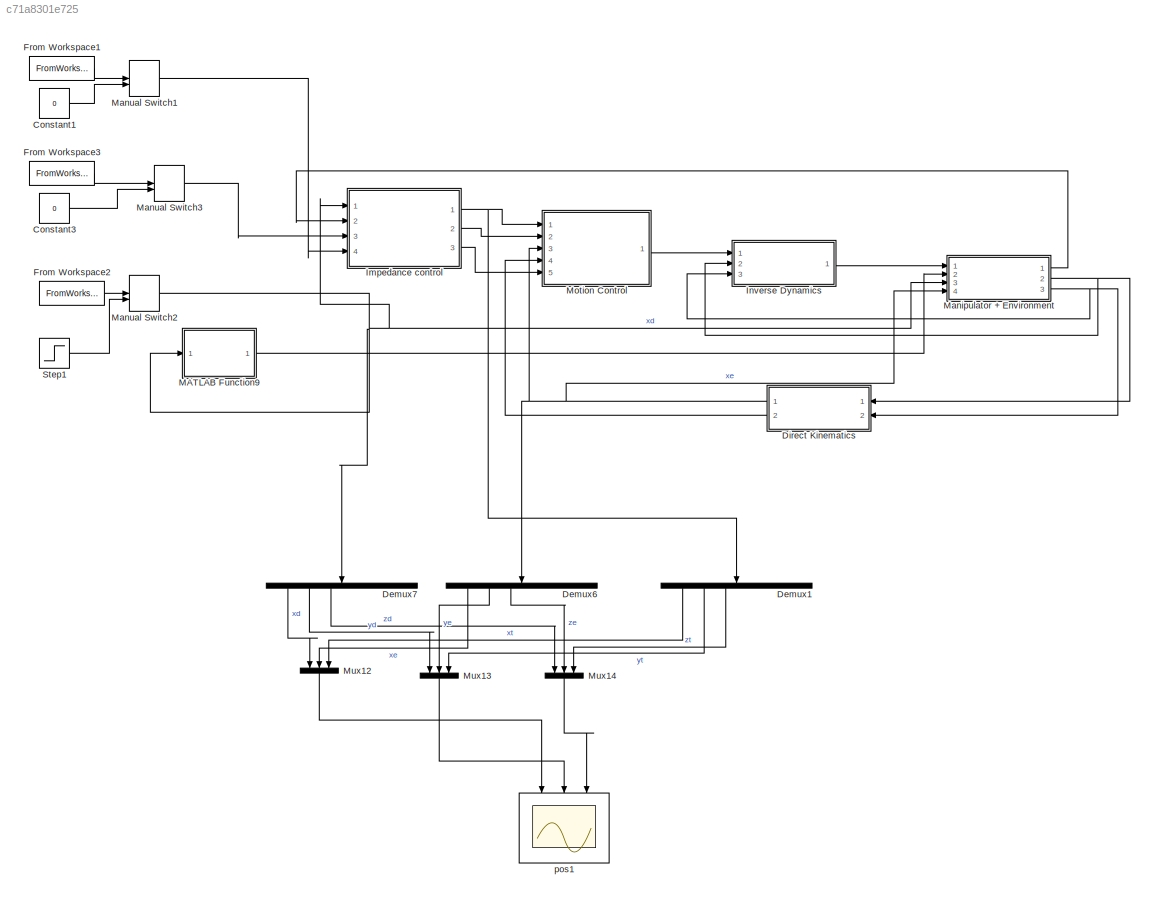
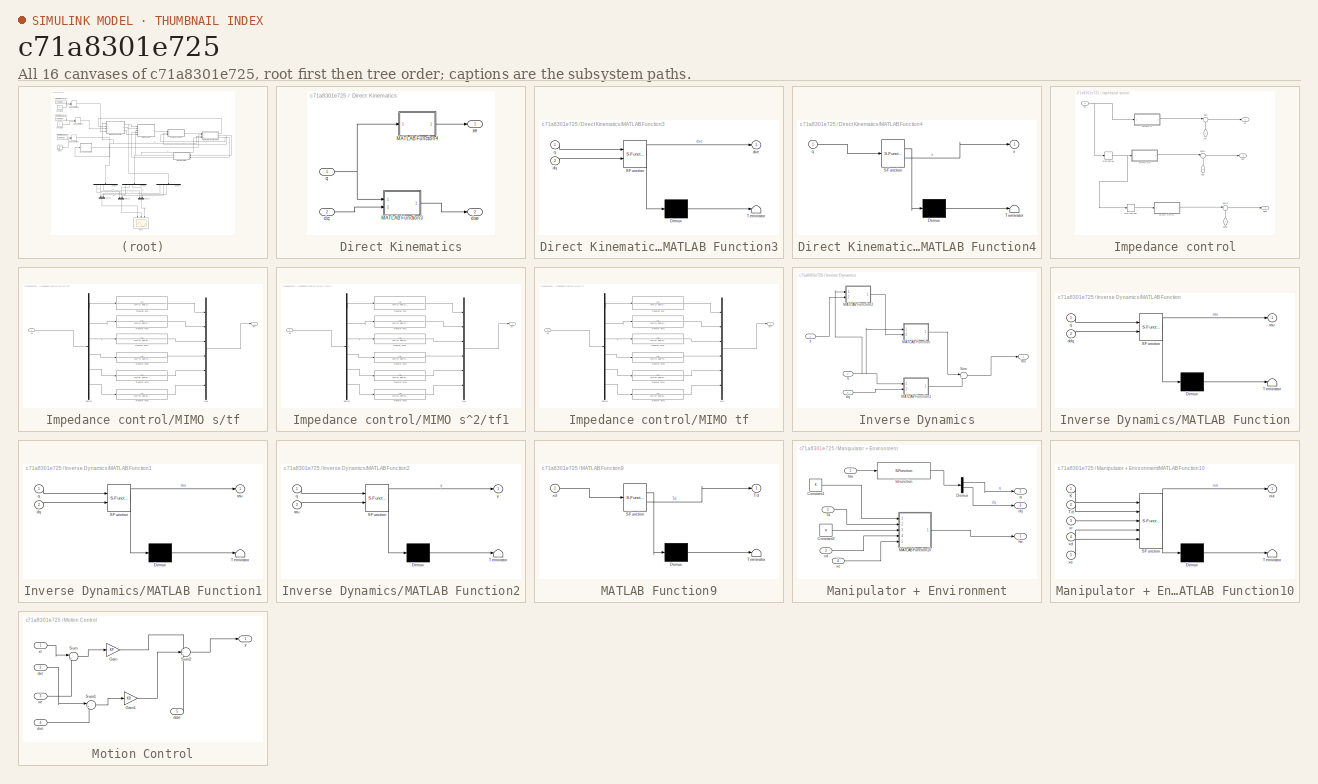
[diagram: thumbnail index - all 16 canvases of the model, root first then tree order]
MODEL slx_c71a8301e725
KIND model
CONFIG AbsTol = auto
CONFIG EnableMultiTasking = off
CONFIG FixedStep = Ts
CONFIG MaxStep = auto
CONFIG MinStep = auto
CONFIG RelTol = 1e-3
CONFIG SampleTimeConstraint = Unconstrained
CONFIG SolverName = FixedStepAuto
CONFIG StartTime = 0.0
CONFIG StopTime = 10
BLOCK [Constant] Constant1
  Value = 0
BLOCK [Constant] Constant3
  Value = 0
BLOCK [Demux] Demux1
  NameLocation = left
  Outputs = 6
  Ports = [1, 6]
BLOCK [Demux] Demux6
  NameLocation = left
  Outputs = 6
  Ports = [1, 6]
BLOCK [Demux] Demux7
  NameLocation = left
  Outputs = 6
  Ports = [1, 6]
BLOCK [SubSystem] Direct Kinematics
  Ports = [2, 2]
  RequestExecContextInheritance = off
BLOCK [SubSystem] Direct Kinematics/MATLAB Function3
  ErrorFcn = Stateflow.Translate.translate
  PermitHierarchicalResolution = ExplicitOnly
  Ports = [2, 1]
  RequestExecContextInheritance = off
  SFBlockType = MATLAB Function
  TreatAsAtomicUnit = on
BLOCK [Demux] Direct Kinematics/MATLAB Function3/ Demux 
  Outputs = 1
  Ports = [1, 1]
BLOCK [S-Function] Direct Kinematics/MATLAB Function3/ SFunction 
  EnableBusSupport = on
  FunctionName = sf_sfun
  PortCounts = [2 2]
  Ports = [2, 2]
  SFcnIsStateOwnerBlock = off
  SFunctionDeploymentMode = off
  Tag = Stateflow S-Function 10
BLOCK [Terminator] Direct Kinematics/MATLAB Function3/ Terminator 
BLOCK [Inport] Direct Kinematics/MATLAB Function3/dq
  Port = 2
BLOCK [Outport] Direct Kinematics/MATLAB Function3/dxe
BLOCK [Inport] Direct Kinematics/MATLAB Function3/q
BLOCK [SubSystem] Direct Kinematics/MATLAB Function4
  ErrorFcn = Stateflow.Translate.translate
  PermitHierarchicalResolution = ExplicitOnly
  Ports = [1, 1]
  RequestExecContextInheritance = off
  SFBlockType = MATLAB Function
  TreatAsAtomicUnit = on
BLOCK [Demux] Direct Kinematics/MATLAB Function4/ Demux 
  Outputs = 1
  Ports = [1, 1]
BLOCK [S-Function] Direct Kinematics/MATLAB Function4/ SFunction 
  EnableBusSupport = on
  FunctionName = sf_sfun
  PortCounts = [1 2]
  Ports = [1, 2]
  SFcnIsStateOwnerBlock = off
  SFunctionDeploymentMode = off
  Tag = Stateflow S-Function 13
BLOCK [Terminator] Direct Kinematics/MATLAB Function4/ Terminator 
BLOCK [Inport] Direct Kinematics/MATLAB Function4/q
BLOCK [Outport] Direct Kinematics/MATLAB Function4/x
BLOCK [Inport] Direct Kinematics/dq
  Port = 2
BLOCK [Outport] Direct Kinematics/dxe
  Port = 2
BLOCK [Inport] Direct Kinematics/q
BLOCK [Outport] Direct Kinematics/xe
BLOCK [FromWorkspace] From Workspace1
  VariableName = ddxd
BLOCK [FromWorkspace] From Workspace2
  VariableName = xd
BLOCK [FromWorkspace] From Workspace3
  VariableName = dxd
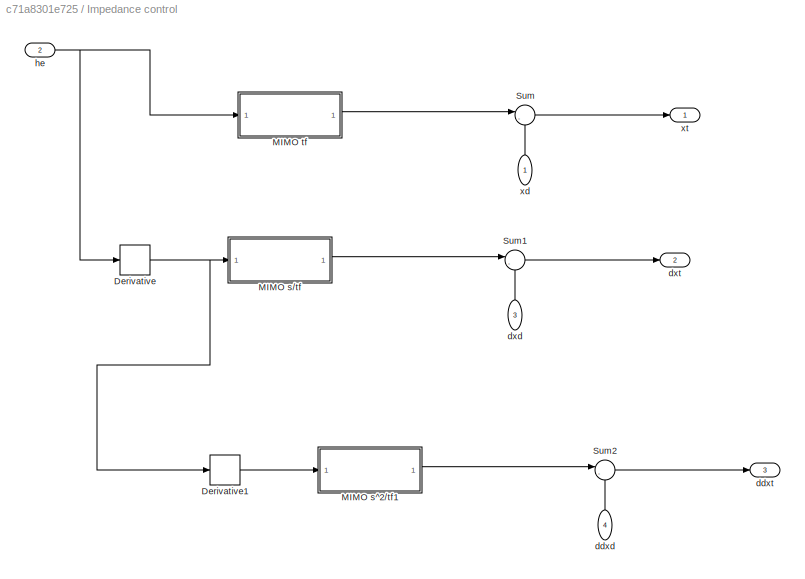
BLOCK [SubSystem] Impedance control
  Ports = [4, 3]
  RequestExecContextInheritance = off
BLOCK [Derivative] Impedance control/Derivative
BLOCK [Derivative] Impedance control/Derivative1
BLOCK [SubSystem] Impedance control/MIMO s//tf
  Ports = [1, 1]
  RequestExecContextInheritance = off
BLOCK [Demux] Impedance control/MIMO s//tf/Demux
  Outputs = 6
  Ports = [1, 6]
BLOCK [Mux] Impedance control/MIMO s//tf/Mux
  DisplayOption = bar
  Inputs = 6
  Ports = [6, 1]
BLOCK [TransferFcn] Impedance control/MIMO s//tf/Transfer Fcn
  Denominator = [Mt(1) KDt(1) KPt(1)]
BLOCK [TransferFcn] Impedance control/MIMO s//tf/Transfer Fcn1
  Denominator = [Mt(2) KDt(2) KPt(2)]
BLOCK [TransferFcn] Impedance control/MIMO s//tf/Transfer Fcn2
  Denominator = [Mt(5) KDt(5) KPt(5)]
BLOCK [TransferFcn] Impedance control/MIMO s//tf/Transfer Fcn3
  Denominator = [Mt(6) KDt(6) KPt(6)]
BLOCK [TransferFcn] Impedance control/MIMO s//tf/Transfer Fcn4
  Denominator = [Mt(3) KDt(3) KPt(3)]
BLOCK [TransferFcn] Impedance control/MIMO s//tf/Transfer Fcn5
  Denominator = [Mt(4) KDt(4) KPt(4)]
BLOCK [Outport] Impedance control/MIMO s//tf/err
BLOCK [Inport] Impedance control/MIMO s//tf/he
BLOCK [SubSystem] Impedance control/MIMO s^2//tf1
  Ports = [1, 1]
  RequestExecContextInheritance = off
BLOCK [Demux] Impedance control/MIMO s^2//tf1/Demux
  Outputs = 6
  Ports = [1, 6]
BLOCK [Mux] Impedance control/MIMO s^2//tf1/Mux
  DisplayOption = bar
  Inputs = 6
  Ports = [6, 1]
BLOCK [TransferFcn] Impedance control/MIMO s^2//tf1/Transfer Fcn
  Denominator = [Mt(1) KDt(1) KPt(1)]
BLOCK [TransferFcn] Impedance control/MIMO s^2//tf1/Transfer Fcn1
  Denominator = [Mt(2) KDt(2) KPt(2)]
BLOCK [TransferFcn] Impedance control/MIMO s^2//tf1/Transfer Fcn2
  Denominator = [Mt(5) KDt(5) KPt(5)]
BLOCK [TransferFcn] Impedance control/MIMO s^2//tf1/Transfer Fcn3
  Denominator = [Mt(6) KDt(6) KPt(6)]
BLOCK [TransferFcn] Impedance control/MIMO s^2//tf1/Transfer Fcn4
  Denominator = [Mt(3) KDt(3) KPt(3)]
BLOCK [TransferFcn] Impedance control/MIMO s^2//tf1/Transfer Fcn5
  Denominator = [Mt(4) KDt(4) KPt(4)]
BLOCK [Outport] Impedance control/MIMO s^2//tf1/err
BLOCK [Inport] Impedance control/MIMO s^2//tf1/he
BLOCK [SubSystem] Impedance control/MIMO tf
  Ports = [1, 1]
  RequestExecContextInheritance = off
BLOCK [Demux] Impedance control/MIMO tf/Demux
  Outputs = 6
  Ports = [1, 6]
BLOCK [Mux] Impedance control/MIMO tf/Mux
  DisplayOption = bar
  Inputs = 6
  Ports = [6, 1]
BLOCK [TransferFcn] Impedance control/MIMO tf/Transfer Fcn
  Denominator = [Mt(1) KDt(1) KPt(1)]
BLOCK [TransferFcn] Impedance control/MIMO tf/Transfer Fcn1
  Denominator = [Mt(2) KDt(2) KPt(2)]
BLOCK [TransferFcn] Impedance control/MIMO tf/Transfer Fcn2
  Denominator = [Mt(5) KDt(5) KPt(5)]
BLOCK [TransferFcn] Impedance control/MIMO tf/Transfer Fcn3
  Denominator = [Mt(6) KDt(6) KPt(6)]
BLOCK [TransferFcn] Impedance control/MIMO tf/Transfer Fcn4
  Denominator = [Mt(3) KDt(3) KPt(3)]
BLOCK [TransferFcn] Impedance control/MIMO tf/Transfer Fcn5
  Denominator = [Mt(4) KDt(4) KPt(4)]
BLOCK [Outport] Impedance control/MIMO tf/err
BLOCK [Inport] Impedance control/MIMO tf/he
BLOCK [Sum] Impedance control/Sum
  Inputs = |-+
  Ports = [2, 1]
BLOCK [Sum] Impedance control/Sum1
  Inputs = |-+
  Ports = [2, 1]
BLOCK [Sum] Impedance control/Sum2
  Inputs = |-+
  Ports = [2, 1]
BLOCK [Inport] Impedance control/ddxd
  NameLocation = right
  Port = 4
BLOCK [Outport] Impedance control/ddxt
  Port = 3
BLOCK [Inport] Impedance control/dxd
  NameLocation = right
  Port = 3
BLOCK [Outport] Impedance control/dxt
  Port = 2
BLOCK [Inport] Impedance control/he
  NameLocation = top
  Port = 2
BLOCK [Inport] Impedance control/xd
  NameLocation = right
BLOCK [Outport] Impedance control/xt
BLOCK [SubSystem] Inverse Dynamics
  Ports = [3, 1]
  RequestExecContextInheritance = off
BLOCK [SubSystem] Inverse Dynamics/MATLAB Function
  ErrorFcn = Stateflow.Translate.translate
  PermitHierarchicalResolution = ExplicitOnly
  Ports = [2, 1]
  RequestExecContextInheritance = off
  SFBlockType = MATLAB Function
  TreatAsAtomicUnit = on
BLOCK [Demux] Inverse Dynamics/MATLAB Function/ Demux 
  Outputs = 1
  Ports = [1, 1]
BLOCK [S-Function] Inverse Dynamics/MATLAB Function/ SFunction 
  EnableBusSupport = on
  FunctionName = sf_sfun
  PortCounts = [2 2]
  Ports = [2, 2]
  SFcnIsStateOwnerBlock = off
  SFunctionDeploymentMode = off
  Tag = Stateflow S-Function 18
BLOCK [Terminator] Inverse Dynamics/MATLAB Function/ Terminator 
BLOCK [Inport] Inverse Dynamics/MATLAB Function/ddq
  Port = 2
BLOCK [Inport] Inverse Dynamics/MATLAB Function/q
BLOCK [Outport] Inverse Dynamics/MATLAB Function/tau
BLOCK [SubSystem] Inverse Dynamics/MATLAB Function1
  ErrorFcn = Stateflow.Translate.translate
  PermitHierarchicalResolution = ExplicitOnly
  Ports = [2, 1]
  RequestExecContextInheritance = off
  SFBlockType = MATLAB Function
  TreatAsAtomicUnit = on
BLOCK [Demux] Inverse Dynamics/MATLAB Function1/ Demux 
  Outputs = 1
  Ports = [1, 1]
BLOCK [S-Function] Inverse Dynamics/MATLAB Function1/ SFunction 
  EnableBusSupport = on
  FunctionName = sf_sfun
  PortCounts = [2 2]
  Ports = [2, 2]
  SFcnIsStateOwnerBlock = off
  SFunctionDeploymentMode = off
  Tag = Stateflow S-Function 19
BLOCK [Terminator] Inverse Dynamics/MATLAB Function1/ Terminator 
BLOCK [Inport] Inverse Dynamics/MATLAB Function1/dq
  Port = 2
BLOCK [Inport] Inverse Dynamics/MATLAB Function1/q
BLOCK [Outport] Inverse Dynamics/MATLAB Function1/tau
BLOCK [SubSystem] Inverse Dynamics/MATLAB Function2
  ErrorFcn = Stateflow.Translate.translate
  PermitHierarchicalResolution = ExplicitOnly
  Ports = [2, 1]
  RequestExecContextInheritance = off
  SFBlockType = MATLAB Function
  TreatAsAtomicUnit = on
BLOCK [Demux] Inverse Dynamics/MATLAB Function2/ Demux 
  Outputs = 1
  Ports = [1, 1]
BLOCK [S-Function] Inverse Dynamics/MATLAB Function2/ SFunction 
  EnableBusSupport = on
  FunctionName = sf_sfun
  PortCounts = [2 2]
  Ports = [2, 2]
  SFcnIsStateOwnerBlock = off
  SFunctionDeploymentMode = off
  Tag = Stateflow S-Function 12
BLOCK [Terminator] Inverse Dynamics/MATLAB Function2/ Terminator 
BLOCK [Inport] Inverse Dynamics/MATLAB Function2/q
BLOCK [Inport] Inverse Dynamics/MATLAB Function2/tau
  Port = 2
BLOCK [Outport] Inverse Dynamics/MATLAB Function2/y
BLOCK [Sum] Inverse Dynamics/Sum
  Inputs = |++
  Ports = [2, 1]
BLOCK [Inport] Inverse Dynamics/dq
  Port = 3
BLOCK [Inport] Inverse Dynamics/q
  Port = 2
BLOCK [Outport] Inverse Dynamics/tau
BLOCK [Inport] Inverse Dynamics/y
BLOCK [SubSystem] MATLAB Function9
  ErrorFcn = Stateflow.Translate.translate
  PermitHierarchicalResolution = ExplicitOnly
  Ports = [1, 1]
  RequestExecContextInheritance = off
  SFBlockType = MATLAB Function
  TreatAsAtomicUnit = on
BLOCK [Demux] MATLAB Function9/ Demux 
  Outputs = 1
  Ports = [1, 1]
BLOCK [S-Function] MATLAB Function9/ SFunction 
  EnableBusSupport = on
  FunctionName = sf_sfun
  PortCounts = [1 2]
  Ports = [1, 2]
  SFcnIsStateOwnerBlock = off
  SFunctionDeploymentMode = off
  Tag = Stateflow S-Function 21
BLOCK [Terminator] MATLAB Function9/ Terminator 
BLOCK [Outport] MATLAB Function9/Td
BLOCK [Inport] MATLAB Function9/xd
BLOCK [SubSystem] Manipulator + Environment
  Ports = [4, 3]
  RequestExecContextInheritance = off
BLOCK [Constant] Manipulator + Environment/Constant1
  Value = K
BLOCK [Constant] Manipulator + Environment/Constant2
  Value = xr
BLOCK [Demux] Manipulator + Environment/Demux
  Outputs = 2
  Ports = [1, 2]
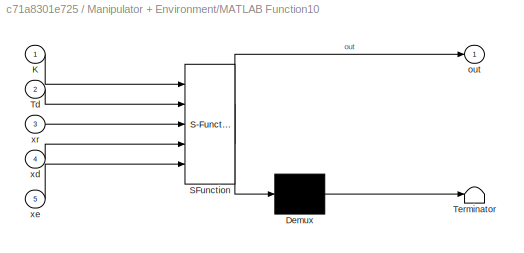
BLOCK [SubSystem] Manipulator + Environment/MATLAB Function10
  ErrorFcn = Stateflow.Translate.translate
  PermitHierarchicalResolution = ExplicitOnly
  Ports = [5, 1]
  RequestExecContextInheritance = off
  SFBlockType = MATLAB Function
  TreatAsAtomicUnit = on
BLOCK [Demux] Manipulator + Environment/MATLAB Function10/ Demux 
  Outputs = 1
  Ports = [1, 1]
BLOCK [S-Function] Manipulator + Environment/MATLAB Function10/ SFunction 
  EnableBusSupport = on
  FunctionName = sf_sfun
  PortCounts = [5 2]
  Ports = [5, 2]
  SFcnIsStateOwnerBlock = off
  SFunctionDeploymentMode = off
  Tag = Stateflow S-Function 20
BLOCK [Terminator] Manipulator + Environment/MATLAB Function10/ Terminator 
BLOCK [Inport] Manipulator + Environment/MATLAB Function10/K
BLOCK [Inport] Manipulator + Environment/MATLAB Function10/Td
  Port = 2
BLOCK [Outport] Manipulator + Environment/MATLAB Function10/out
BLOCK [Inport] Manipulator + Environment/MATLAB Function10/xd
  Port = 4
BLOCK [Inport] Manipulator + Environment/MATLAB Function10/xe
  Port = 5
BLOCK [Inport] Manipulator + Environment/MATLAB Function10/xr
  Port = 3
BLOCK [S-Function] Manipulator + Environment/S-Function
  EnableBusSupport = off
  FunctionName = fwd_dyn_joint_lagrangian
  Parameters = myRobot,qi,dqi
  Ports = [1, 1]
  SFcnIsStateOwnerBlock = off
  SFunctionDeploymentMode = off
BLOCK [Inport] Manipulator + Environment/Td
  Port = 2
BLOCK [Outport] Manipulator + Environment/dq
  Port = 3
BLOCK [Outport] Manipulator + Environment/he
BLOCK [Outport] Manipulator + Environment/q
  Port = 2
BLOCK [Inport] Manipulator + Environment/tau
BLOCK [Inport] Manipulator + Environment/xd
  Port = 3
BLOCK [Inport] Manipulator + Environment/xe
  Port = 4
BLOCK [ManualSwitch] Manual Switch1
BLOCK [ManualSwitch] Manual Switch2
BLOCK [ManualSwitch] Manual Switch3
BLOCK [SubSystem] Motion Control
  Ports = [5, 1]
  RequestExecContextInheritance = off
BLOCK [Gain] Motion Control/Gain
  Gain = KP
BLOCK [Gain] Motion Control/Gain1
  Gain = KD
BLOCK [Sum] Motion Control/Sum
  Inputs = |+-
  Ports = [2, 1]
BLOCK [Sum] Motion Control/Sum1
  Inputs = |+-
  Ports = [2, 1]
BLOCK [Sum] Motion Control/Sum2
  Inputs = +++
  Ports = [3, 1]
BLOCK [Inport] Motion Control/ddxt
  Port = 5
BLOCK [Inport] Motion Control/dxe
  Port = 4
BLOCK [Inport] Motion Control/dxt
  Port = 2
BLOCK [Inport] Motion Control/xe
  Port = 3
BLOCK [Inport] Motion Control/xt
BLOCK [Outport] Motion Control/y
BLOCK [Mux] Mux12
  DisplayOption = bar
  Inputs = 3
  NameLocation = left
  Ports = [3, 1]
BLOCK [Mux] Mux13
  DisplayOption = bar
  Inputs = 3
  NameLocation = left
  Ports = [3, 1]
BLOCK [Mux] Mux14
  DisplayOption = bar
  Inputs = 3
  NameLocation = left
  Ports = [3, 1]
BLOCK [Step] Step1
  After = xf
  Before = xi
  SampleTime = 0
BLOCK [Scope] pos1
  Floating = off
  NameLocation = left
  NumInputPorts = 3
  Ports = [3]
  ScopeSpecificationString = Simulink.scopes.TimeScopeBlockCfg('CurrentConfiguration', extmgr.ConfigurationSet(extmgr.Configuration('Core','General UI',true),extmgr.Configuration('Core','Source UI',true),extmgr.Configuration('Sources','WiredSimulink',true,'DataLoggingVariableName','ScopeData1'),extmgr.Configuration('Visuals','Time Domain',true,'SerializedDisplays',{struct('MinYLimReal','-0.01875','MaxYLimReal','0.16875','YLab...<+3643ch>
LINE Constant1:1 -> Manual Switch1:2
LINE Constant3:1 -> Manual Switch3:2
LINE Demux1:1 -> Mux12:3
LINE Demux1:2 -> Mux13:3
LINE Demux1:3 -> Mux14:3
LINE Demux6:1 -> Mux12:2
LINE Demux6:2 -> Mux13:2
LINE Demux6:3 -> Mux14:2
LINE Demux7:1 -> Mux12:1
LINE Demux7:2 -> Mux13:1
LINE Demux7:3 -> Mux14:1
LINE Direct Kinematics/MATLAB Function3:1 -> Direct Kinematics/dxe:1
LINE Direct Kinematics/MATLAB Function4:1 -> Direct Kinematics/xe:1
LINE Direct Kinematics/dq:1 -> Direct Kinematics/MATLAB Function3:2
NET Direct Kinematics/q:1 -> Direct Kinematics/MATLAB Function3:1, Direct Kinematics/MATLAB Function4:1
NET Direct Kinematics:1 -> Demux6:1, Manipulator + Environment:4, Motion Control:3
LINE Direct Kinematics:2 -> Motion Control:4
LINE From Workspace1:1 -> Manual Switch1:1
LINE From Workspace2:1 -> Manual Switch2:1
LINE From Workspace3:1 -> Manual Switch3:1
LINE Impedance control/Derivative1:1 -> Impedance control/MIMO s^2//tf1:1
NET Impedance control/Derivative:1 -> Impedance control/Derivative1:1, Impedance control/MIMO s//tf:1
LINE Impedance control/MIMO s//tf/Demux:1 -> Impedance control/MIMO s//tf/Transfer Fcn:1
LINE Impedance control/MIMO s//tf/Demux:2 -> Impedance control/MIMO s//tf/Transfer Fcn1:1
LINE Impedance control/MIMO s//tf/Demux:3 -> Impedance control/MIMO s//tf/Transfer Fcn4:1
LINE Impedance control/MIMO s//tf/Demux:4 -> Impedance control/MIMO s//tf/Transfer Fcn5:1
LINE Impedance control/MIMO s//tf/Demux:5 -> Impedance control/MIMO s//tf/Transfer Fcn2:1
LINE Impedance control/MIMO s//tf/Demux:6 -> Impedance control/MIMO s//tf/Transfer Fcn3:1
LINE Impedance control/MIMO s//tf/Mux:1 -> Impedance control/MIMO s//tf/err:1
LINE Impedance control/MIMO s//tf/Transfer Fcn1:1 -> Impedance control/MIMO s//tf/Mux:2
LINE Impedance control/MIMO s//tf/Transfer Fcn2:1 -> Impedance control/MIMO s//tf/Mux:5
LINE Impedance control/MIMO s//tf/Transfer Fcn3:1 -> Impedance control/MIMO s//tf/Mux:6
LINE Impedance control/MIMO s//tf/Transfer Fcn4:1 -> Impedance control/MIMO s//tf/Mux:3
LINE Impedance control/MIMO s//tf/Transfer Fcn5:1 -> Impedance control/MIMO s//tf/Mux:4
LINE Impedance control/MIMO s//tf/Transfer Fcn:1 -> Impedance control/MIMO s//tf/Mux:1
LINE Impedance control/MIMO s//tf/he:1 -> Impedance control/MIMO s//tf/Demux:1
LINE Impedance control/MIMO s//tf:1 -> Impedance control/Sum1:1
LINE Impedance control/MIMO s^2//tf1/Demux:1 -> Impedance control/MIMO s^2//tf1/Transfer Fcn:1
LINE Impedance control/MIMO s^2//tf1/Demux:2 -> Impedance control/MIMO s^2//tf1/Transfer Fcn1:1
LINE Impedance control/MIMO s^2//tf1/Demux:3 -> Impedance control/MIMO s^2//tf1/Transfer Fcn4:1
LINE Impedance control/MIMO s^2//tf1/Demux:4 -> Impedance control/MIMO s^2//tf1/Transfer Fcn5:1
LINE Impedance control/MIMO s^2//tf1/Demux:5 -> Impedance control/MIMO s^2//tf1/Transfer Fcn2:1
LINE Impedance control/MIMO s^2//tf1/Demux:6 -> Impedance control/MIMO s^2//tf1/Transfer Fcn3:1
LINE Impedance control/MIMO s^2//tf1/Mux:1 -> Impedance control/MIMO s^2//tf1/err:1
LINE Impedance control/MIMO s^2//tf1/Transfer Fcn1:1 -> Impedance control/MIMO s^2//tf1/Mux:2
LINE Impedance control/MIMO s^2//tf1/Transfer Fcn2:1 -> Impedance control/MIMO s^2//tf1/Mux:5
LINE Impedance control/MIMO s^2//tf1/Transfer Fcn3:1 -> Impedance control/MIMO s^2//tf1/Mux:6
LINE Impedance control/MIMO s^2//tf1/Transfer Fcn4:1 -> Impedance control/MIMO s^2//tf1/Mux:3
LINE Impedance control/MIMO s^2//tf1/Transfer Fcn5:1 -> Impedance control/MIMO s^2//tf1/Mux:4
LINE Impedance control/MIMO s^2//tf1/Transfer Fcn:1 -> Impedance control/MIMO s^2//tf1/Mux:1
LINE Impedance control/MIMO s^2//tf1/he:1 -> Impedance control/MIMO s^2//tf1/Demux:1
LINE Impedance control/MIMO s^2//tf1:1 -> Impedance control/Sum2:1
LINE Impedance control/MIMO tf/Demux:1 -> Impedance control/MIMO tf/Transfer Fcn:1
LINE Impedance control/MIMO tf/Demux:2 -> Impedance control/MIMO tf/Transfer Fcn1:1
LINE Impedance control/MIMO tf/Demux:3 -> Impedance control/MIMO tf/Transfer Fcn4:1
LINE Impedance control/MIMO tf/Demux:4 -> Impedance control/MIMO tf/Transfer Fcn5:1
LINE Impedance control/MIMO tf/Demux:5 -> Impedance control/MIMO tf/Transfer Fcn2:1
LINE Impedance control/MIMO tf/Demux:6 -> Impedance control/MIMO tf/Transfer Fcn3:1
LINE Impedance control/MIMO tf/Mux:1 -> Impedance control/MIMO tf/err:1
LINE Impedance control/MIMO tf/Transfer Fcn1:1 -> Impedance control/MIMO tf/Mux:2
LINE Impedance control/MIMO tf/Transfer Fcn2:1 -> Impedance control/MIMO tf/Mux:5
LINE Impedance control/MIMO tf/Transfer Fcn3:1 -> Impedance control/MIMO tf/Mux:6
LINE Impedance control/MIMO tf/Transfer Fcn4:1 -> Impedance control/MIMO tf/Mux:3
LINE Impedance control/MIMO tf/Transfer Fcn5:1 -> Impedance control/MIMO tf/Mux:4
LINE Impedance control/MIMO tf/Transfer Fcn:1 -> Impedance control/MIMO tf/Mux:1
LINE Impedance control/MIMO tf/he:1 -> Impedance control/MIMO tf/Demux:1
LINE Impedance control/MIMO tf:1 -> Impedance control/Sum:1
LINE Impedance control/Sum1:1 -> Impedance control/dxt:1
LINE Impedance control/Sum2:1 -> Impedance control/ddxt:1
LINE Impedance control/Sum:1 -> Impedance control/xt:1
LINE Impedance control/ddxd:1 -> Impedance control/Sum2:2
LINE Impedance control/dxd:1 -> Impedance control/Sum1:2
NET Impedance control/he:1 -> Impedance control/Derivative:1, Impedance control/MIMO tf:1
LINE Impedance control/xd:1 -> Impedance control/Sum:2
NET Impedance control:1 -> Demux1:1, Motion Control:1
LINE Impedance control:2 -> Motion Control:2
LINE Impedance control:3 -> Motion Control:5
LINE Inverse Dynamics/MATLAB Function1:1 -> Inverse Dynamics/Sum:2
LINE Inverse Dynamics/MATLAB Function2:1 -> Inverse Dynamics/MATLAB Function:2
LINE Inverse Dynamics/MATLAB Function:1 -> Inverse Dynamics/Sum:1
LINE Inverse Dynamics/Sum:1 -> Inverse Dynamics/tau:1
LINE Inverse Dynamics/dq:1 -> Inverse Dynamics/MATLAB Function1:2
NET Inverse Dynamics/q:1 -> Inverse Dynamics/MATLAB Function1:1, Inverse Dynamics/MATLAB Function2:1, Inverse Dynamics/MATLAB Function:1
LINE Inverse Dynamics/y:1 -> Inverse Dynamics/MATLAB Function2:2
LINE Inverse Dynamics:1 -> Manipulator + Environment:1
LINE MATLAB Function9:1 -> Manipulator + Environment:2
LINE Manipulator + Environment/Constant1:1 -> Manipulator + Environment/MATLAB Function10:1
LINE Manipulator + Environment/Constant2:1 -> Manipulator + Environment/MATLAB Function10:3
LINE Manipulator + Environment/Demux:1 -> Manipulator + Environment/q:1
LINE Manipulator + Environment/Demux:2 -> Manipulator + Environment/dq:1
LINE Manipulator + Environment/MATLAB Function10:1 -> Manipulator + Environment/he:1
LINE Manipulator + Environment/S-Function:1 -> Manipulator + Environment/Demux:1
LINE Manipulator + Environment/Td:1 -> Manipulator + Environment/MATLAB Function10:2
LINE Manipulator + Environment/tau:1 -> Manipulator + Environment/S-Function:1
LINE Manipulator + Environment/xd:1 -> Manipulator + Environment/MATLAB Function10:4
LINE Manipulator + Environment/xe:1 -> Manipulator + Environment/MATLAB Function10:5
LINE Manipulator + Environment:1 -> Impedance control:2
NET Manipulator + Environment:2 -> Direct Kinematics:1, Inverse Dynamics:2
NET Manipulator + Environment:3 -> Direct Kinematics:2, Inverse Dynamics:3
LINE Manual Switch1:1 -> Impedance control:4
NET Manual Switch2:1 -> Demux7:1, Impedance control:1, MATLAB Function9:1, Manipulator + Environment:3
LINE Manual Switch3:1 -> Impedance control:3
LINE Motion Control/Gain1:1 -> Motion Control/Sum2:2
LINE Motion Control/Gain:1 -> Motion Control/Sum2:1
LINE Motion Control/Sum1:1 -> Motion Control/Gain1:1
LINE Motion Control/Sum2:1 -> Motion Control/y:1
LINE Motion Control/Sum:1 -> Motion Control/Gain:1
LINE Motion Control/ddxt:1 -> Motion Control/Sum2:3
LINE Motion Control/dxe:1 -> Motion Control/Sum1:2
LINE Motion Control/dxt:1 -> Motion Control/Sum1:1
LINE Motion Control/xe:1 -> Motion Control/Sum:2
LINE Motion Control/xt:1 -> Motion Control/Sum:1
LINE Motion Control:1 -> Inverse Dynamics:1
LINE Mux12:1 -> pos1:1
LINE Mux13:1 -> pos1:2
LINE Mux14:1 -> pos1:3
LINE Step1:1 -> Manual Switch2:2
note: NET lines group one-source signal fan-out (src -> all destinations, sorted); 1:1 wires keep LINE
CHART Direct Kinematics/MATLAB Function3 states=1 transitions=1
  STATE_LABEL 'eML_blk_kernel()'
  STATE_LABEL 'SCRIPT:\nfunction dxe = Ja(q, dq)\n\ndxe = getJa(q)*dq;\n'
CHART Inverse Dynamics/MATLAB Function2 states=1 transitions=1
  STATE_LABEL 'eML_blk_kernel()'
  STATE_LABEL 'SCRIPT:\nfunction y = invJa(q, tau)\n\ny = getInvJa(q)*tau;\n'
CHART Direct Kinematics/MATLAB Function4 states=1 transitions=1
  STATE_LABEL 'eML_blk_kernel()'
  STATE_LABEL 'SCRIPT:\nfunction x = k(q)\n\nx = getK(q);\n'
CHART Inverse Dynamics/MATLAB Function states=1 transitions=1
  STATE_LABEL 'eML_blk_kernel()'
  STATE_LABEL 'SCRIPT:\nfunction tau = B(q, ddq)\n\ntau = getB(q)*ddq;\n'
CHART Inverse Dynamics/MATLAB Function1 states=1 transitions=1
  STATE_LABEL 'eML_blk_kernel()'
  STATE_LABEL 'SCRIPT:\nfunction tau = n(q, dq)\n\ntau = getN(q, dq);\n'
CHART Manipulator + Environment/MATLAB Function10 states=1 transitions=1
  STATE_LABEL 'eML_blk_kernel()'
  STATE_LABEL 'SCRIPT:\nfunction out = hde(K,Td, xr, xd, xe)\n%consider the interaction only in z direction\nif xe(3) < xr(3)\n    dxrd = xd-xr;\n    dxed = xd-xe;\n    dxre = dxrd-dxed;\n    he = K*dxre;\nelse\n    he = zeros(6,1);\nend\n\nout = he;'
CHART MATLAB Function9 states=1 transitions=1
  STATE_LABEL 'eML_blk_kernel()'
  STATE_LABEL "SCRIPT:\nfunction Td = getTd(xd)\nRd = eul2rotm(xd(4:6)','ZYZ');\nt = xd(1:3);\nTd = [Rd t\n    zeros(1,3) 1];"
CHART  states=0 transitions=0
CHART  states=0 transitions=0
CHART  states=0 transitions=0
CHART  states=0 transitions=0
CHART  states=0 transitions=0
CHART  states=0 transitions=0
CHART  states=0 transitions=0
